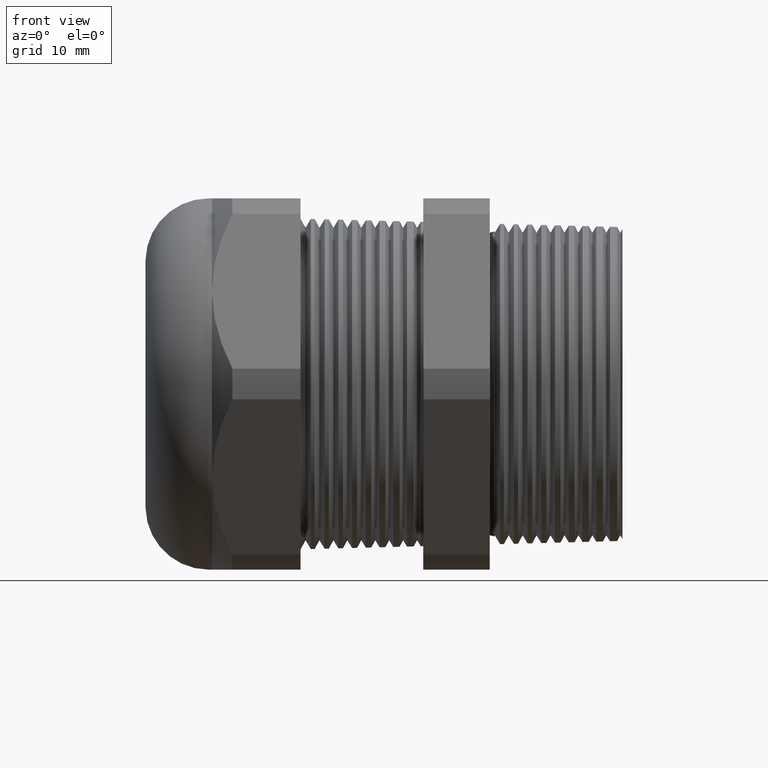
[diagram: clean part render]
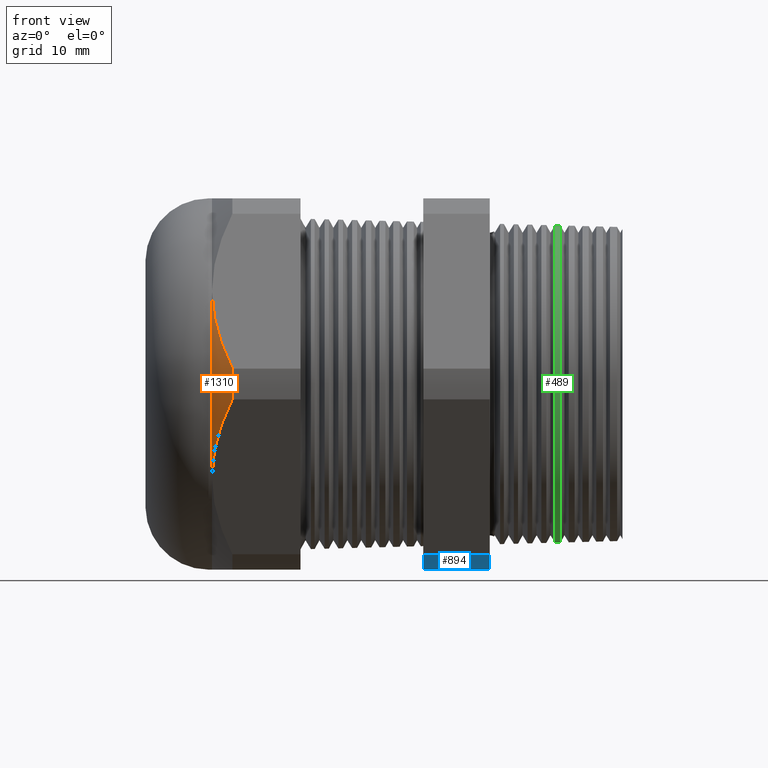
[diagram: same view with three faces highlighted in distinct colors, each labeled with its STEP entity id]
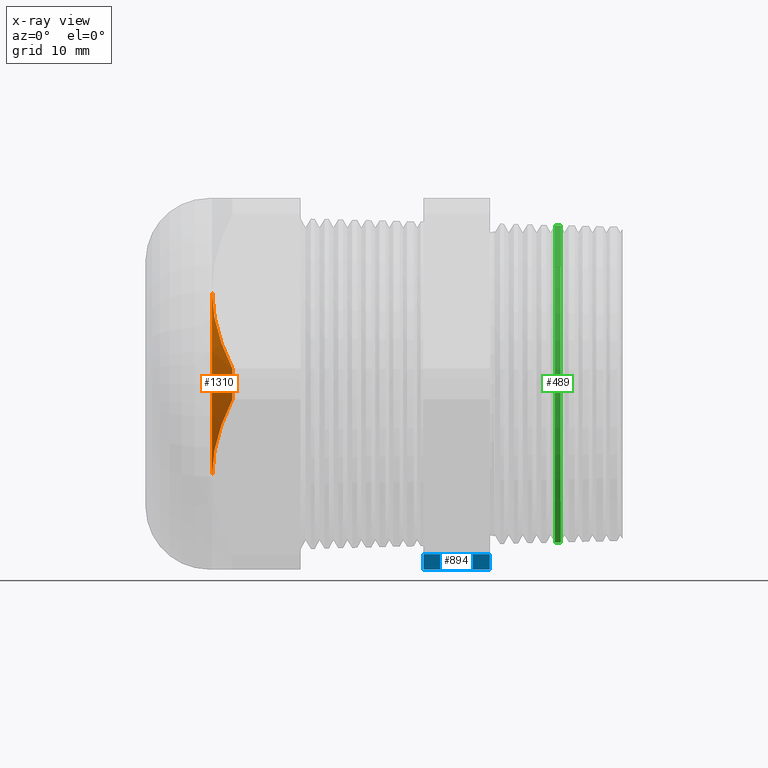
[diagram: x-ray of the same camera — body ghosted, the three highlighted faces saturated]
A machine part, front view with three faces highlighted in distinct colors.
The next image is the same camera in x-ray (body ghosted, the three faces saturated) — at least one of them is partly hidden behind the body in this view.
Their STEP definitions:

[orange] entity #1310 — the highlighted conical surface has half-angle 45 deg.
#200 = EDGE_CURVE ( 'NONE', #371, #215, #1708, .T. ) ;
#210 = VERTEX_POINT ( 'NONE', #1764 ) ;
#215 = VERTEX_POINT ( 'NONE', #1751 ) ;
#371 = VERTEX_POINT ( 'NONE', #2113 ) ;
#398 = EDGE_CURVE ( 'NONE', #675, #371, #2118, .T. ) ;
#675 = VERTEX_POINT ( 'NONE', #2631 ) ;
#691 = EDGE_CURVE ( 'NONE', #210, #675, #2719, .T. ) ;
#734 = EDGE_CURVE ( 'NONE', #210, #215, #2811, .T. ) ;
#1238 = ORIENTED_EDGE ( 'NONE', *, *, #691, .F. ) ;
#1310 = ADVANCED_FACE ( 'NONE', ( #3708 ), #3706, .T. ) ;
#1311 = EDGE_LOOP ( 'NONE', ( #1312, #1313, #1314, #1238 ) ) ;
#1312 = ORIENTED_EDGE ( 'NONE', *, *, #734, .T. ) ;
#1313 = ORIENTED_EDGE ( 'NONE', *, *, #200, .F. ) ;
#1314 = ORIENTED_EDGE ( 'NONE', *, *, #398, .F. ) ;
#1708 = B_SPLINE_CURVE_WITH_KNOTS ( 'NONE', 3,
 ( #1763, #1762, #1761, #1760, #1759, #1758, #1757, #1756, #1755, #1754 ),
 .UNSPECIFIED., .F., .F.,
 ( 4, 2, 2, 2, 4 ),
 ( 2.483247851908164900E-007, 0.005180948890086922000, 0.007771299172737786500, 0.009066474314063214400, 0.01036164945538864100 ),
 .UNSPECIFIED. ) ;
#1751 = CARTESIAN_POINT ( 'NONE',  ( -1.544724409448818800, -0.7144709581221618800, -0.4125000000000000300 ) ) ;
#1754 = CARTESIAN_POINT ( 'NONE',  ( -1.544724409448818800, -0.7144709581221618800, -0.4125000000000000300 ) ) ;
#1755 = CARTESIAN_POINT ( 'NONE',  ( -1.544724409448819500, -0.7230732368552937900, -0.3976004161733470200 ) ) ;
#1756 = CARTESIAN_POINT ( 'NONE',  ( -1.544180023244015000, -0.7317541954706502400, -0.3825645547931471600 ) ) ;
#1757 = CARTESIAN_POINT ( 'NONE',  ( -1.542017830737549600, -0.7490016981251840200, -0.3526910038918149000 ) ) ;
#1758 = CARTESIAN_POINT ( 'NONE',  ( -1.540407094865047700, -0.7575594521946493700, -0.3378685390448223900 ) ) ;
#1759 = CARTESIAN_POINT ( 'NONE',  ( -1.534081869582212300, -0.7830466726716904800, -0.2937233782348761500 ) ) ;
#1760 = CARTESIAN_POINT ( 'NONE',  ( -1.527873897119453400, -0.7997900393570254200, -0.2647230164461195600 ) ) ;
#1761 = CARTESIAN_POINT ( 'NONE',  ( -1.504100495182840700, -0.8493784731801422600, -0.1788333295967143600 ) ) ;
#1762 = CARTESIAN_POINT ( 'NONE',  ( -1.481417170283923800, -0.8815858103379826700, -0.1230485852628335900 ) ) ;
#1763 = CARTESIAN_POINT ( 'NONE',  ( -1.453974409448819200, -0.9132000843845193800, -0.06829105636982654700 ) ) ;
#1764 = CARTESIAN_POINT ( 'NONE',  ( -1.544724409448818800, -0.7144709581221622100, 0.4124999999999999200 ) ) ;
#2113 = CARTESIAN_POINT ( 'NONE',  ( -1.453974409448819200, -0.9132000843845193800, -0.06829105636982654700 ) ) ;
#2118 = CIRCLE ( 'NONE', #2182, 0.9157500000000000600 ) ;
#2179 = DIRECTION ( 'NONE',  ( 0.0000000000000000000, 0.0000000000000000000, -1.000000000000000000 ) ) ;
#2180 = DIRECTION ( 'NONE',  ( 1.000000000000000000, 0.0000000000000000000, 0.0000000000000000000 ) ) ;
#2181 = CARTESIAN_POINT ( 'NONE',  ( -1.453974409448819200, 0.0000000000000000000, 0.0000000000000000000 ) ) ;
#2182 = AXIS2_PLACEMENT_3D ( 'NONE', #2181, #2180, #2179 ) ;
#2631 = CARTESIAN_POINT ( 'NONE',  ( -1.453974409448819200, -0.9132000843845194900, 0.06829105636982570100 ) ) ;
#2711 = CARTESIAN_POINT ( 'NONE',  ( -1.453974409448819200, -0.9132000843845194900, 0.06829105636982570100 ) ) ;
#2712 = CARTESIAN_POINT ( 'NONE',  ( -1.481451138322201100, -0.8815466788935424300, 0.1231163629127782300 ) ) ;
#2713 = CARTESIAN_POINT ( 'NONE',  ( -1.504454367446969700, -0.8488306607340111400, 0.1797821685864319800 ) ) ;
#2714 = CARTESIAN_POINT ( 'NONE',  ( -1.536043178441334400, -0.7825559566388159400, 0.2945733233359038600 ) ) ;
#2715 = CARTESIAN_POINT ( 'NONE',  ( -1.544724409448818400, -0.7488564788623134300, 0.3529425310333434400 ) ) ;
#2716 = CARTESIAN_POINT ( 'NONE',  ( -1.544724409448818800, -0.7144709581221622100, 0.4124999999999999200 ) ) ;
#2719 = B_SPLINE_CURVE_WITH_KNOTS ( 'NONE', 3,
 ( #2716, #2715, #2714, #2713, #2712, #2711 ),
 .UNSPECIFIED., .F., .F.,
 ( 4, 2, 4 ),
 ( 0.01036164945538863900, 0.01553879763505034200, 0.02071594581471204700 ),
 .UNSPECIFIED. ) ;
#2807 = DIRECTION ( 'NONE',  ( 0.0000000000000000000, 0.0000000000000000000, -1.000000000000000000 ) ) ;
#2808 = DIRECTION ( 'NONE',  ( 1.000000000000000000, 0.0000000000000000000, 0.0000000000000000000 ) ) ;
#2809 = CARTESIAN_POINT ( 'NONE',  ( -1.544724409448818800, 0.0000000000000000000, 0.0000000000000000000 ) ) ;
#2810 = AXIS2_PLACEMENT_3D ( 'NONE', #2809, #2808, #2807 ) ;
#2811 = CIRCLE ( 'NONE', #2810, 0.8250000000000000700 ) ;
#3702 = DIRECTION ( 'NONE',  ( 0.0000000000000000000, 0.0000000000000000000, 1.000000000000000000 ) ) ;
#3703 = DIRECTION ( 'NONE',  ( 1.000000000000000000, 0.0000000000000000000, 0.0000000000000000000 ) ) ;
#3704 = CARTESIAN_POINT ( 'NONE',  ( -1.544724409448818800, 0.0000000000000000000, 0.0000000000000000000 ) ) ;
#3705 = AXIS2_PLACEMENT_3D ( 'NONE', #3704, #3703, #3702 ) ;
#3706 = CONICAL_SURFACE ( 'NONE', #3705, 0.8249999999999998400, 0.7853981633974501700 ) ;
#3708 = FACE_OUTER_BOUND ( 'NONE', #1311, .T. ) ;

[blue] entity #894 — the highlighted cylindrical surface (partial cylindrical patch) has radius 23.26 mm, axis along (-1, 0, 0).
#890 = EDGE_CURVE ( 'NONE', #3503, #891, #3056, .T. ) ;
#891 = VERTEX_POINT ( 'NONE', #3048 ) ;
#894 = ADVANCED_FACE ( 'NONE', ( #3108 ), #3107, .T. ) ;
#895 = EDGE_LOOP ( 'NONE', ( #896, #897, #898, #954 ) ) ;
#896 = ORIENTED_EDGE ( 'NONE', *, *, #890, .F. ) ;
#897 = ORIENTED_EDGE ( 'NONE', *, *, #4291, .F. ) ;
#898 = ORIENTED_EDGE ( 'NONE', *, *, #899, .T. ) ;
#899 = EDGE_CURVE ( 'NONE', #4513, #900, #3102, .T. ) ;
#900 = VERTEX_POINT ( 'NONE', #3098 ) ;
#954 = ORIENTED_EDGE ( 'NONE', *, *, #955, .F. ) ;
#955 = EDGE_CURVE ( 'NONE', #891, #900, #3198, .T. ) ;
#3048 = CARTESIAN_POINT ( 'NONE',  ( -0.6052755905511810800, -0.3974582525247148400, -0.8250000000000000700 ) ) ;
#3049 = DIRECTION ( 'NONE',  ( -1.000000000000000000, 0.0000000000000000000, 0.0000000000000000000 ) ) ;
#3050 = VECTOR ( 'NONE', #3049, 39.37007874015748100 ) ;
#3051 = CARTESIAN_POINT ( 'NONE',  ( 0.2800000000000000300, -0.3974582525247148400, -0.8250000000000000700 ) ) ;
#3056 = LINE ( 'NONE', #3051, #3050 ) ;
#3098 = CARTESIAN_POINT ( 'NONE',  ( -0.6052755905511810800, -0.5157418318598041600, -0.7567089436301738200 ) ) ;
#3099 = DIRECTION ( 'NONE',  ( -1.000000000000000000, 0.0000000000000000000, 0.0000000000000000000 ) ) ;
#3100 = VECTOR ( 'NONE', #3099, 39.37007874015748100 ) ;
#3101 = CARTESIAN_POINT ( 'NONE',  ( 0.2800000000000000300, -0.5157418318598041600, -0.7567089436301738200 ) ) ;
#3102 = LINE ( 'NONE', #3101, #3100 ) ;
#3103 = DIRECTION ( 'NONE',  ( 0.0000000000000000000, 0.0000000000000000000, 1.000000000000000000 ) ) ;
#3104 = DIRECTION ( 'NONE',  ( -1.000000000000000000, 0.0000000000000000000, 0.0000000000000000000 ) ) ;
#3105 = CARTESIAN_POINT ( 'NONE',  ( 0.2800000000000000300, 0.0000000000000000000, 0.0000000000000000000 ) ) ;
#3106 = AXIS2_PLACEMENT_3D ( 'NONE', #3105, #3104, #3103 ) ;
#3107 = CYLINDRICAL_SURFACE ( 'NONE', #3106, 0.9157500000000000600 ) ;
#3108 = FACE_OUTER_BOUND ( 'NONE', #895, .T. ) ;
#3194 = DIRECTION ( 'NONE',  ( 0.0000000000000000000, 0.0000000000000000000, 1.000000000000000000 ) ) ;
#3195 = DIRECTION ( 'NONE',  ( -1.000000000000000000, 0.0000000000000000000, 0.0000000000000000000 ) ) ;
#3196 = CARTESIAN_POINT ( 'NONE',  ( -0.6052755905511810800, 0.0000000000000000000, 0.0000000000000000000 ) ) ;
#3197 = AXIS2_PLACEMENT_3D ( 'NONE', #3196, #3195, #3194 ) ;
#3198 = CIRCLE ( 'NONE', #3197, 0.9157500000000000600 ) ;
#3503 = VERTEX_POINT ( 'NONE', #3862 ) ;
#3856 = DIRECTION ( 'NONE',  ( 0.0000000000000000000, 0.0000000000000000000, -1.000000000000000000 ) ) ;
#3857 = DIRECTION ( 'NONE',  ( 1.000000000000000000, 0.0000000000000000000, 0.0000000000000000000 ) ) ;
#3858 = CARTESIAN_POINT ( 'NONE',  ( -0.3100000000000000000, 0.0000000000000000000, 0.0000000000000000000 ) ) ;
#3859 = AXIS2_PLACEMENT_3D ( 'NONE', #3858, #3857, #3856 ) ;
#3860 = CIRCLE ( 'NONE', #3859, 0.9157500000000000600 ) ;
#3862 = CARTESIAN_POINT ( 'NONE',  ( -0.3100000000000000000, -0.3974582525247148400, -0.8250000000000000700 ) ) ;
#4118 = CARTESIAN_POINT ( 'NONE',  ( -0.3100000000000000000, -0.5157418318598041600, -0.7567089436301738200 ) ) ;
#4291 = EDGE_CURVE ( 'NONE', #4513, #3503, #3860, .T. ) ;
#4513 = VERTEX_POINT ( 'NONE', #4118 ) ;

[green] entity #489 — the highlighted conical surface has half-angle 1.5 deg.
#401 = EDGE_CURVE ( 'NONE', #994, #991, #2178, .T. ) ;
#402 = ORIENTED_EDGE ( 'NONE', *, *, #401, .F. ) ;
#478 = ORIENTED_EDGE ( 'NONE', *, *, #4393, .T. ) ;
#485 = ORIENTED_EDGE ( 'NONE', *, *, #486, .F. ) ;
#486 = EDGE_CURVE ( 'NONE', #980, #977, #2370, .T. ) ;
#487 = EDGE_LOOP ( 'NONE', ( #488, #485, #478, #402 ) ) ;
#488 = ORIENTED_EDGE ( 'NONE', *, *, #647, .F. ) ;
#489 = ADVANCED_FACE ( 'NONE', ( #2366 ), #2365, .T. ) ;
#647 = EDGE_CURVE ( 'NONE', #977, #994, #2618, .T. ) ;
#977 = VERTEX_POINT ( 'NONE', #3226 ) ;
#980 = VERTEX_POINT ( 'NONE', #3220 ) ;
#991 = VERTEX_POINT ( 'NONE', #3264 ) ;
#994 = VERTEX_POINT ( 'NONE', #3258 ) ;
#2174 = DIRECTION ( 'NONE',  ( 0.0000000000000000000, 0.0000000000000000000, -1.000000000000000000 ) ) ;
#2175 = DIRECTION ( 'NONE',  ( -1.000000000000000000, 0.0000000000000000000, 0.0000000000000000000 ) ) ;
#2176 = CARTESIAN_POINT ( 'NONE',  ( -0.01974454976139390600, 0.0000000000000000000, 0.0000000000000000000 ) ) ;
#2177 = AXIS2_PLACEMENT_3D ( 'NONE', #2176, #2175, #2174 ) ;
#2178 = CIRCLE ( 'NONE', #2177, 0.7053764149402680400 ) ;
#2312 = CARTESIAN_POINT ( 'NONE',  ( 0.004471085542857479100, 0.0000000000000000000, 0.0000000000000000000 ) ) ;
#2360 = DIRECTION ( 'NONE',  ( 0.0000000000000000000, 0.0000000000000000000, 1.000000000000000000 ) ) ;
#2361 = DIRECTION ( 'NONE',  ( -1.000000000000000000, 0.0000000000000000000, 0.0000000000000000000 ) ) ;
#2362 = CARTESIAN_POINT ( 'NONE',  ( 0.2800000000000000300, 0.0000000000000000000, 0.0000000000000000000 ) ) ;
#2363 = AXIS2_PLACEMENT_3D ( 'NONE', #2362, #2361, #2360 ) ;
#2365 = CONICAL_SURFACE ( 'NONE', #2363, 0.6975273276694270400, 0.02617993877990781200 ) ;
#2366 = FACE_OUTER_BOUND ( 'NONE', #487, .T. ) ;
#2367 = DIRECTION ( 'NONE',  ( 0.0000000000000000000, 0.0000000000000000000, 1.000000000000000000 ) ) ;
#2368 = DIRECTION ( 'NONE',  ( 1.000000000000000000, 0.0000000000000000000, 0.0000000000000000000 ) ) ;
#2369 = AXIS2_PLACEMENT_3D ( 'NONE', #2312, #2368, #2367 ) ;
#2370 = CIRCLE ( 'NONE', #2369, 0.7047423062134432500 ) ;
#2615 = DIRECTION ( 'NONE',  ( -0.9996573249755573700, 3.205751595667385000E-018, -0.02617694830786602300 ) ) ;
#2616 = VECTOR ( 'NONE', #2615, 39.37007874015748100 ) ;
#2617 = CARTESIAN_POINT ( 'NONE',  ( 0.2800000000000000300, 8.542246091481708500E-017, -0.6975273276694270400 ) ) ;
#2618 = LINE ( 'NONE', #2617, #2616 ) ;
#3220 = CARTESIAN_POINT ( 'NONE',  ( 0.004471085542857479100, 0.0000000000000000000, 0.7047423062134432500 ) ) ;
#3226 = CARTESIAN_POINT ( 'NONE',  ( 0.004471085542857479100, 8.634486891393258100E-017, -0.7047423062134432500 ) ) ;
#3258 = CARTESIAN_POINT ( 'NONE',  ( -0.01974454976139390600, 8.638369687506344000E-017, -0.7053764149402679300 ) ) ;
#3264 = CARTESIAN_POINT ( 'NONE',  ( -0.01974454976139390600, 0.0000000000000000000, 0.7053764149402679300 ) ) ;
#3853 = CARTESIAN_POINT ( 'NONE',  ( 0.2800000000000000300, 0.0000000000000000000, 0.6975273276694270400 ) ) ;
#3854 = LINE ( 'NONE', #3853, #3910 ) ;
#3909 = DIRECTION ( 'NONE',  ( -0.9996573249755573700, 0.0000000000000000000, 0.02617694830786602300 ) ) ;
#3910 = VECTOR ( 'NONE', #3909, 39.37007874015748100 ) ;
#4393 = EDGE_CURVE ( 'NONE', #980, #991, #3854, .T. ) ;